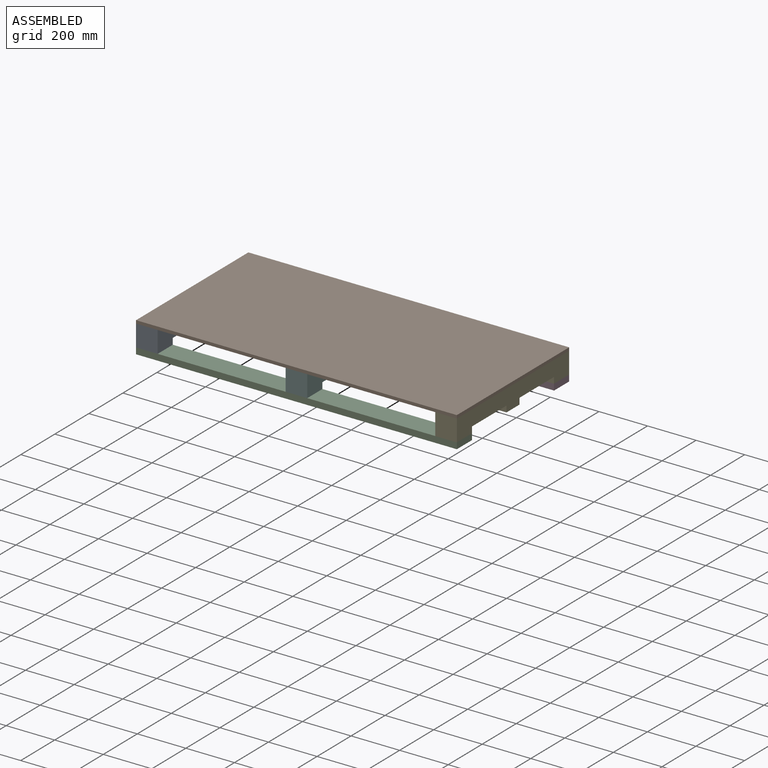
[diagram: assembled view]
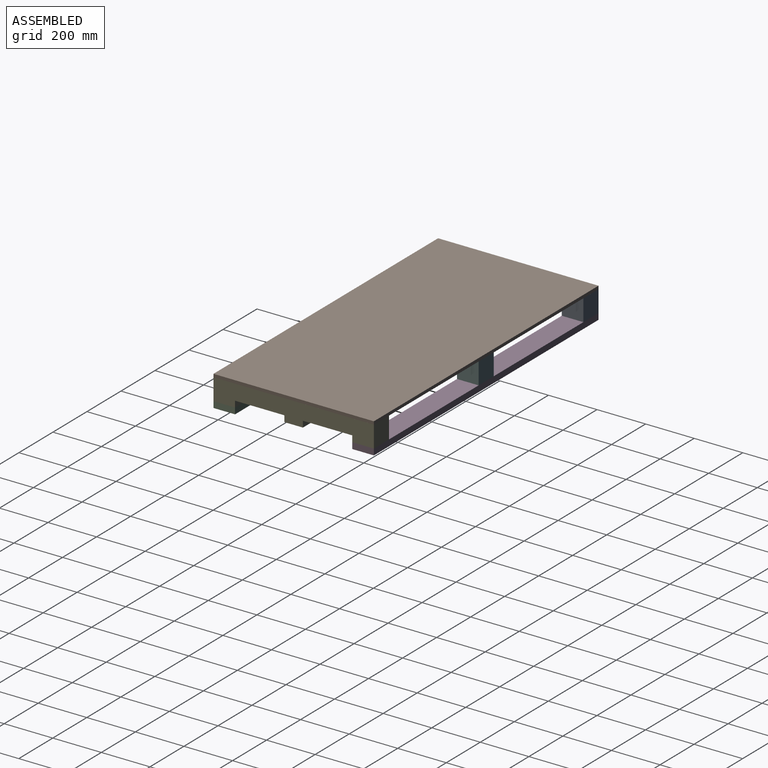
[diagram: assembled view, second angle]
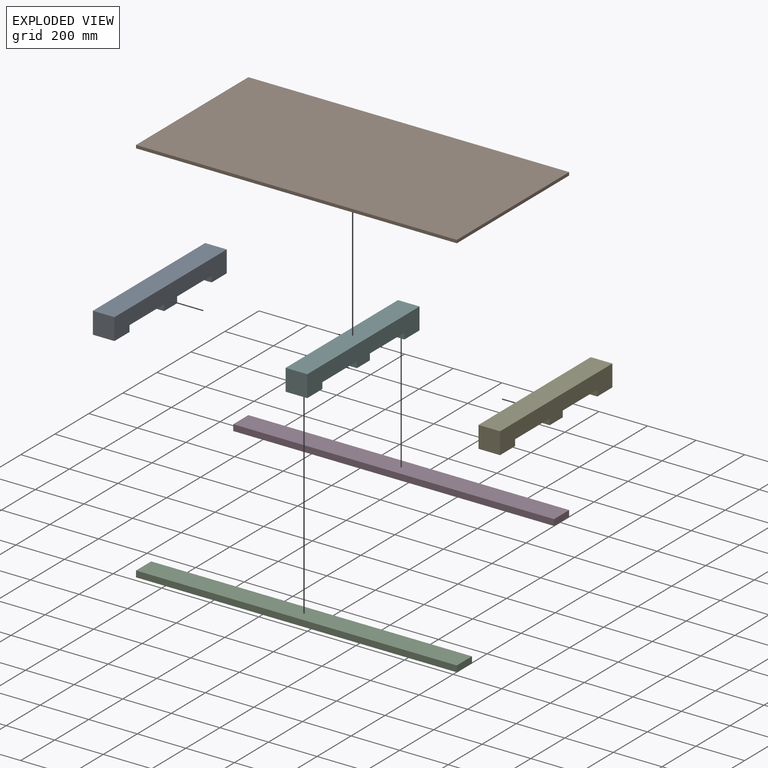
[diagram: exploded view]
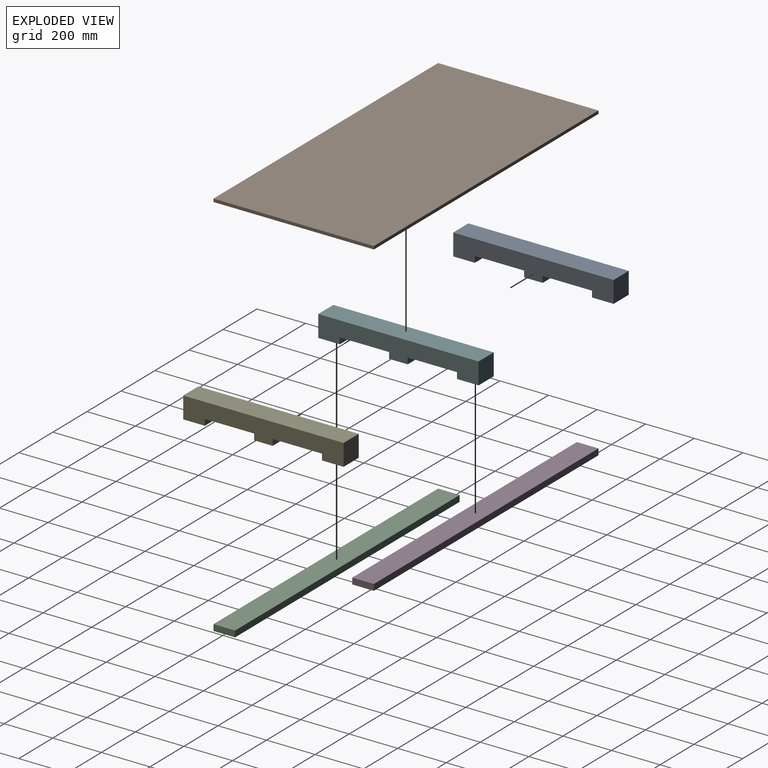
[diagram: exploded view, second angle]
ASSEMBLY  parts=6 mates=2
PART A: 14 faces, bbox 88.9x660.4x88.9 mm
  f0: plane 88.9x76.2mm, normal (0,0,-1), area 6774.2mm2, adj f2,f4,f8,f12
  f1: plane 88.9x88.9mm, normal (0,0,-1), area 7903.2mm2, adj f2,f4,f6,f9
  f2: plane 660.4x88.9mm, normal (-1,0,0), area 48387mm2, adj f0,f1,f3,f5,f6,f7,f8,f9
  f3: plane 88.9x88.9mm, normal (0,0,-1), area 7903.2mm2, adj f2,f4,f7,f11
  f4: plane 660.4x88.9mm, normal (1,0,0), area 48387mm2, adj f0,f1,f3,f5,f6,f7,f8,f9
  f5: plane 660.4x88.9mm, normal (0,0,1), area 58709.6mm2, adj f2,f4,f6,f7
  f6: plane 88.9x88.9mm, normal (0,1,0), area 7903.2mm2, adj f1,f2,f4,f5
  f7: plane 88.9x88.9mm, normal (0,-1,0), area 7903.2mm2, adj f2,f3,f4,f5
  f8: plane 88.9x25.4mm, normal (0,1,0), area 2258.1mm2, adj f0,f2,f4,f10
  f9: plane 88.9x25.4mm, normal (0,-1,0), area 2258.1mm2, adj f1,f2,f4,f10
  f10: plane 203.2x88.9mm, normal (0,0,-1), area 18064.5mm2, adj f2,f4,f8,f9
  f11: plane 88.9x25.4mm, normal (0,1,0), area 2258.1mm2, adj f2,f3,f4,f13
  f12: plane 88.9x25.4mm, normal (0,-1,0), area 2258.1mm2, adj f0,f2,f4,f13
  f13: plane 203.2x88.9mm, normal (0,0,-1), area 18064.5mm2, adj f2,f4,f11,f12
PART B: 6 faces, bbox 1320.8x660.4x12.7 mm
  f0: plane 1320.8x12.7mm, normal (0,1,0), area 16774.2mm2, adj f1,f3,f4,f5
  f1: plane 660.4x12.7mm, normal (-1,0,0), area 8387.1mm2, adj f0,f2,f4,f5
  f2: plane 1320.8x12.7mm, normal (0,-1,0), area 16774.2mm2, adj f1,f3,f4,f5
  f3: plane 660.4x12.7mm, normal (1,0,0), area 8387.1mm2, adj f0,f2,f4,f5
  f4: plane 1320.8x660.4mm, normal (0,0,1), area 872256.3mm2, adj f0,f1,f2,f3
  f5: plane 1320.8x660.4mm, normal (0,0,-1), area 872256.3mm2, adj f0,f1,f2,f3
PART C: 6 faces, bbox 88.9x1320.8x25.4 mm
  f0: plane 1320.8x25.4mm, normal (-1,0,0), area 33548.3mm2, adj f1,f3,f4,f5
  f1: plane 1320.8x88.9mm, normal (0,0,-1), area 117419.1mm2, adj f0,f2,f4,f5
  f2: plane 1320.8x25.4mm, normal (1,0,0), area 33548.3mm2, adj f1,f3,f4,f5
  f3: plane 1320.8x88.9mm, normal (0,0,1), area 117419.1mm2, adj f0,f2,f4,f5
  f4: plane 88.9x25.4mm, normal (0,1,0), area 2258.1mm2, adj f0,f1,f2,f3
  f5: plane 88.9x25.4mm, normal (0,-1,0), area 2258.1mm2, adj f0,f1,f2,f3
PART D: same geometry as C
PART E: same geometry as A
PART F: same geometry as A
PLACE A t=(-92.28,-18.52,-105.01)mm
PLACE B t=(-33.19,10.14,-16.11)mm
PLACE C rot(axis=(0,0,-1),90deg) t=(-92.28,70.38,-130.41)mm
PLACE D rot(axis=(0,0,-1),90deg) t=(-92.28,641.88,-130.41)mm
PLACE E t=(1139.62,-18.52,-105.01)mm
PLACE F t=(523.67,-18.52,-105.01)mm
MATE fastened A.f5 <-> B.f5  axis (0,0,1) through (-92.28,311.68,-16.11)mm
MATE fastened C.f3 <-> A.f3  axis (0,0,1) through (-92.28,-18.52,-105.01)mm
